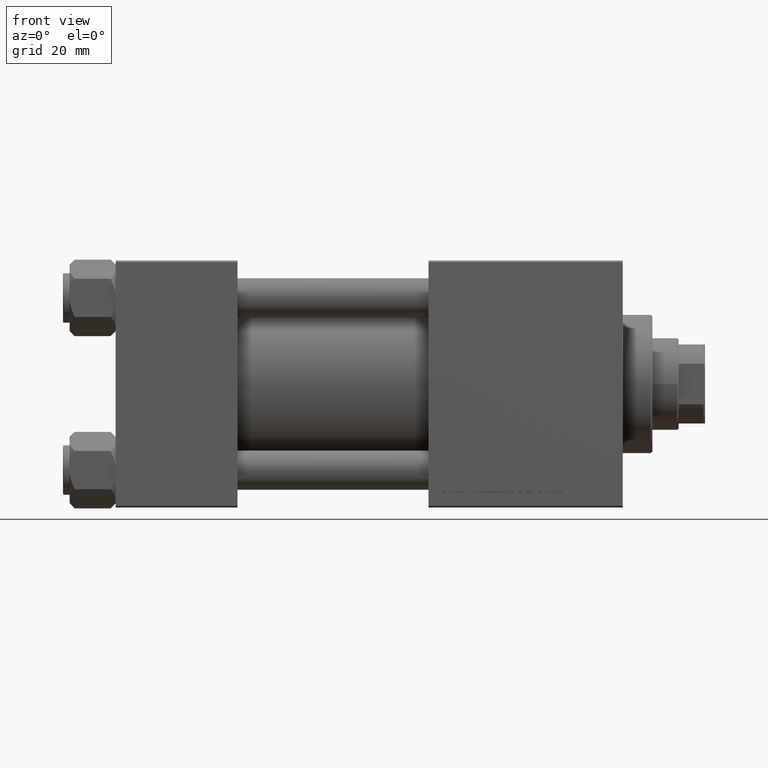
[diagram: clean part render]
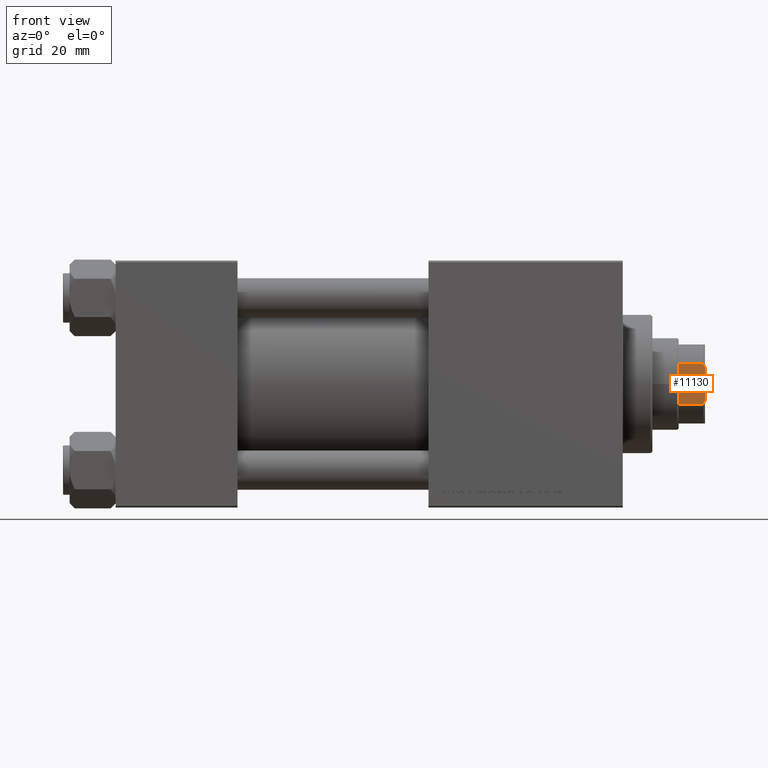
[diagram: same view with one face highlighted and labeled with its STEP entity id]
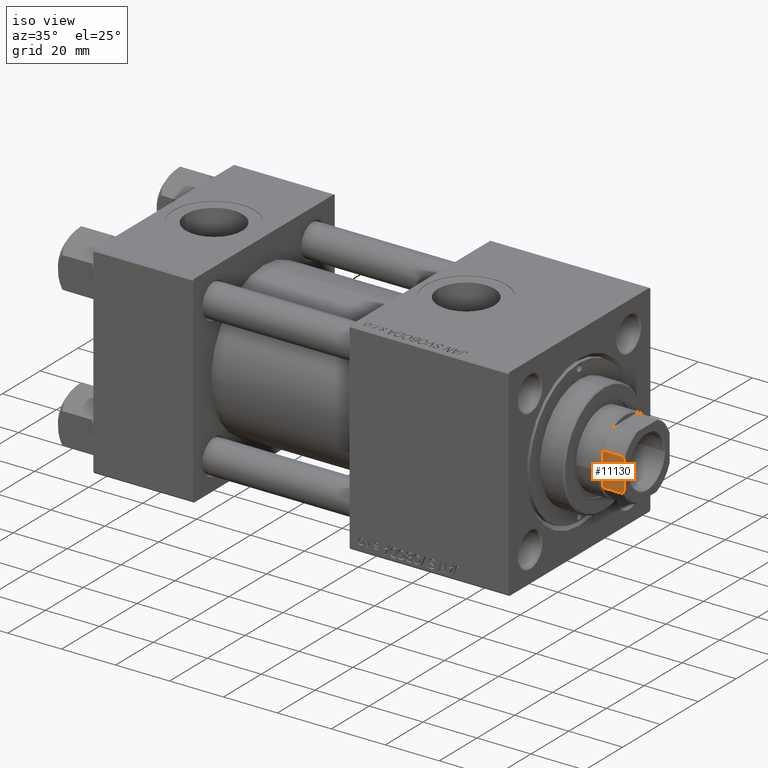
[diagram: same view with one face highlighted and labeled with its STEP entity id]
A machine part, front view. The second image highlights one B-rep face of the part: STEP entity #11130.
A second angle (iso view) of the same face is appended — the face is thin or edge-on in the first view.
In plain terms, the highlighted planar face has unit normal (0, 1, 0).
Its self-contained STEP definition (entity closure, byte-faithful):
#221 = VECTOR ( 'NONE', #45445, 1000.000000000000000 ) ;
#3635 = EDGE_CURVE ( 'NONE', #7779, #46482, #20483, .T. ) ;
#3808 = EDGE_CURVE ( 'NONE', #46482, #42456, #40468, .T. ) ;
#4345 = CARTESIAN_POINT ( 'NONE',  ( 11.99999999999999645, 11.99999999999999645, 142.0000000000000284 ) ) ;
#5378 = ORIENTED_EDGE ( 'NONE', *, *, #20440, .T. ) ;
#7171 = DIRECTION ( 'NONE',  ( -1.000000000000000000, -2.891205793294678326E-16, 0.000000000000000000 ) ) ;
#7209 = CARTESIAN_POINT ( 'NONE',  ( 11.99999999999999645, 5.794808544282235907, 141.6785991435214100 ) ) ;
#7779 = VERTEX_POINT ( 'NONE', #44050 ) ;
#9521 = CARTESIAN_POINT ( 'NONE',  ( 12.00000000000000178, -5.794808544282239460, 141.6785991435214385 ) ) ;
#10030 = CARTESIAN_POINT ( 'NONE',  ( 11.99999999999999467, -6.184658438426501981, 141.5000000000000284 ) ) ;
#11130 = ADVANCED_FACE ( 'NONE', ( #49914 ), #38221, .F. ) ;
#13455 = VERTEX_POINT ( 'NONE', #47333 ) ;
#13644 = CARTESIAN_POINT ( 'NONE',  ( 11.99999999999999645, 11.99999999999999645, 134.0000000000000000 ) ) ;
#14085 = CARTESIAN_POINT ( 'NONE',  ( 11.99999999999999822, 4.999999999999980460, 142.0000000000000284 ) ) ;
#14853 = VECTOR ( 'NONE', #29183, 1000.000000000000000 ) ;
#17031 = EDGE_CURVE ( 'NONE', #13455, #7779, #32996, .T. ) ;
#18563 = ORIENTED_EDGE ( 'NONE', *, *, #3635, .T. ) ;
#20314 = EDGE_CURVE ( 'NONE', #13455, #49401, #38081, .T. ) ;
#20332 = ORIENTED_EDGE ( 'NONE', *, *, #17031, .T. ) ;
#20440 = EDGE_CURVE ( 'NONE', #41162, #49401, #48427, .T. ) ;
#20483 = LINE ( 'NONE', #48196, #30242 ) ;
#23801 = ORIENTED_EDGE ( 'NONE', *, *, #3808, .T. ) ;
#27167 = CARTESIAN_POINT ( 'NONE',  ( 11.99999999999999645, 11.99999999999999645, 142.0000000000000284 ) ) ;
#27663 = DIRECTION ( 'NONE',  ( -2.891205793294678326E-16, 1.000000000000000000, -0.000000000000000000 ) ) ;
#29183 = DIRECTION ( 'NONE',  ( -2.891205793294678326E-16, 1.000000000000000000, -0.000000000000000000 ) ) ;
#29947 = CARTESIAN_POINT ( 'NONE',  ( 11.99999999999999467, -6.184658438426501981, -0.001000000000001000089 ) ) ;
#30242 = VECTOR ( 'NONE', #37013, 1000.000000000000000 ) ;
#30580 = VECTOR ( 'NONE', #27663, 1000.000000000000000 ) ;
#31236 = LINE ( 'NONE', #27167, #30580 ) ;
#32683 = CARTESIAN_POINT ( 'NONE',  ( 12.00000000000000178, -5.400255697127774646, 141.8460555011047006 ) ) ;
#32996 = LINE ( 'NONE', #13644, #14853 ) ;
#33185 = CARTESIAN_POINT ( 'NONE',  ( 12.00000000000000178, -4.999999999999976907, 142.0000000000000284 ) ) ;
#33687 = CARTESIAN_POINT ( 'NONE',  ( 11.99999999999999645, 6.184658438426496652, 141.5000000000000284 ) ) ;
#33947 = CARTESIAN_POINT ( 'NONE',  ( 11.99999999999999822, 5.400255697127778198, 141.8460555011047006 ) ) ;
#36621 = AXIS2_PLACEMENT_3D ( 'NONE', #4345, #7171, #42544 ) ;
#37010 = CARTESIAN_POINT ( 'NONE',  ( 11.99999999999999467, -6.184658438426501981, 141.5000000000000284 ) ) ;
#37013 = DIRECTION ( 'NONE',  ( -0.000000000000000000, -0.000000000000000000, 1.000000000000000000 ) ) ;
#38081 = LINE ( 'NONE', #29947, #221 ) ;
#38221 = PLANE ( 'NONE',  #36621 ) ;
#40468 = B_SPLINE_CURVE_WITH_KNOTS ( 'NONE', 3,
 ( #33687, #7209, #33947, #14085 ),
 .UNSPECIFIED., .F., .F.,
 ( 4, 4 ),
 ( 0.000000000000000000, 0.001285852097146150371 ),
 .UNSPECIFIED. ) ;
#41142 = EDGE_LOOP ( 'NONE', ( #18563, #23801, #48028, #5378, #42438, #20332 ) ) ;
#41162 = VERTEX_POINT ( 'NONE', #43551 ) ;
#42438 = ORIENTED_EDGE ( 'NONE', *, *, #20314, .F. ) ;
#42456 = VERTEX_POINT ( 'NONE', #49559 ) ;
#42544 = DIRECTION ( 'NONE',  ( 2.891205793294678326E-16, -1.000000000000000000, 0.000000000000000000 ) ) ;
#43551 = CARTESIAN_POINT ( 'NONE',  ( 12.00000000000000178, -4.999999999999976907, 142.0000000000000284 ) ) ;
#44050 = CARTESIAN_POINT ( 'NONE',  ( 11.99999999999999645, 6.184658438426496652, 134.0000000000000000 ) ) ;
#45151 = CARTESIAN_POINT ( 'NONE',  ( 11.99999999999999645, 6.184658438426496652, 141.5000000000000284 ) ) ;
#45445 = DIRECTION ( 'NONE',  ( -0.000000000000000000, -0.000000000000000000, 1.000000000000000000 ) ) ;
#46482 = VERTEX_POINT ( 'NONE', #45151 ) ;
#47333 = CARTESIAN_POINT ( 'NONE',  ( 11.99999999999999467, -6.184658438426501981, 134.0000000000000000 ) ) ;
#48028 = ORIENTED_EDGE ( 'NONE', *, *, #48162, .F. ) ;
#48162 = EDGE_CURVE ( 'NONE', #41162, #42456, #31236, .T. ) ;
#48196 = CARTESIAN_POINT ( 'NONE',  ( 11.99999999999999645, 6.184658438426496652, -0.001000000000001000089 ) ) ;
#48427 = B_SPLINE_CURVE_WITH_KNOTS ( 'NONE', 3,
 ( #33185, #32683, #9521, #37010 ),
 .UNSPECIFIED., .F., .F.,
 ( 4, 4 ),
 ( 8.673617379884035472E-19, 0.001285852097146159044 ),
 .UNSPECIFIED. ) ;
#49401 = VERTEX_POINT ( 'NONE', #10030 ) ;
#49559 = CARTESIAN_POINT ( 'NONE',  ( 11.99999999999999822, 4.999999999999980460, 142.0000000000000284 ) ) ;
#49914 = FACE_OUTER_BOUND ( 'NONE', #41142, .T. ) ;